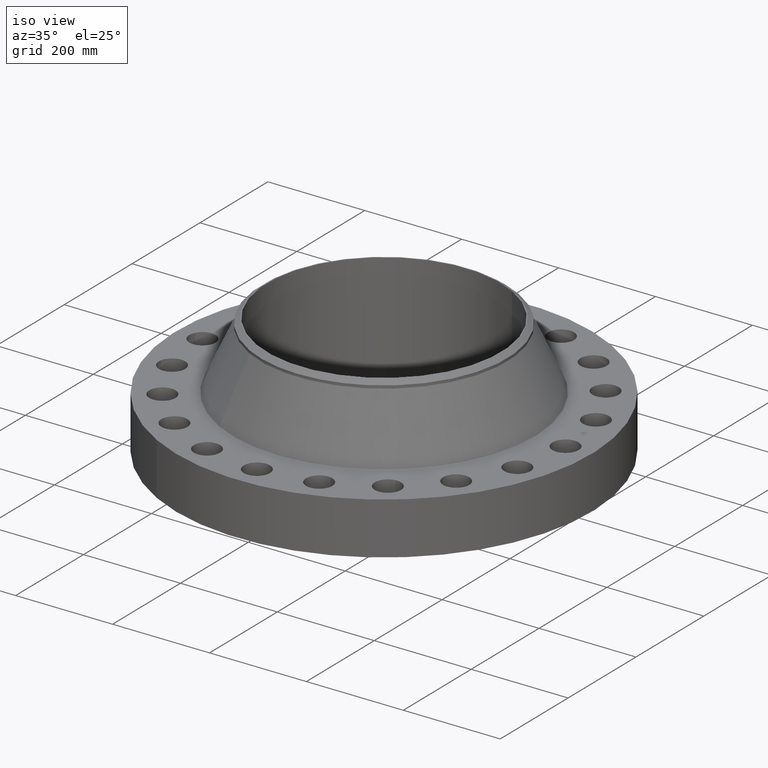
[diagram: clean part render]
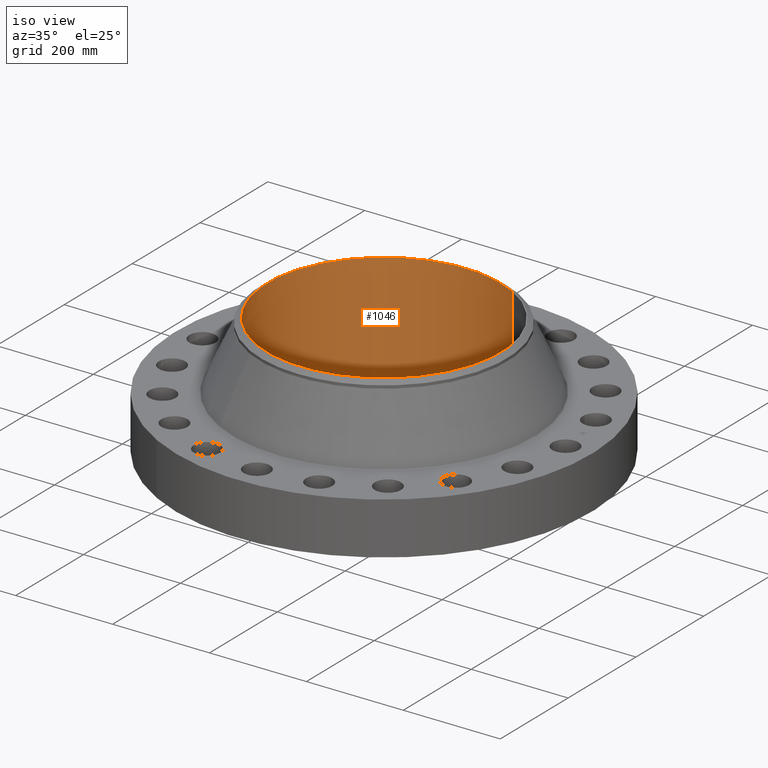
[diagram: same view with one face highlighted and labeled with its STEP entity id]
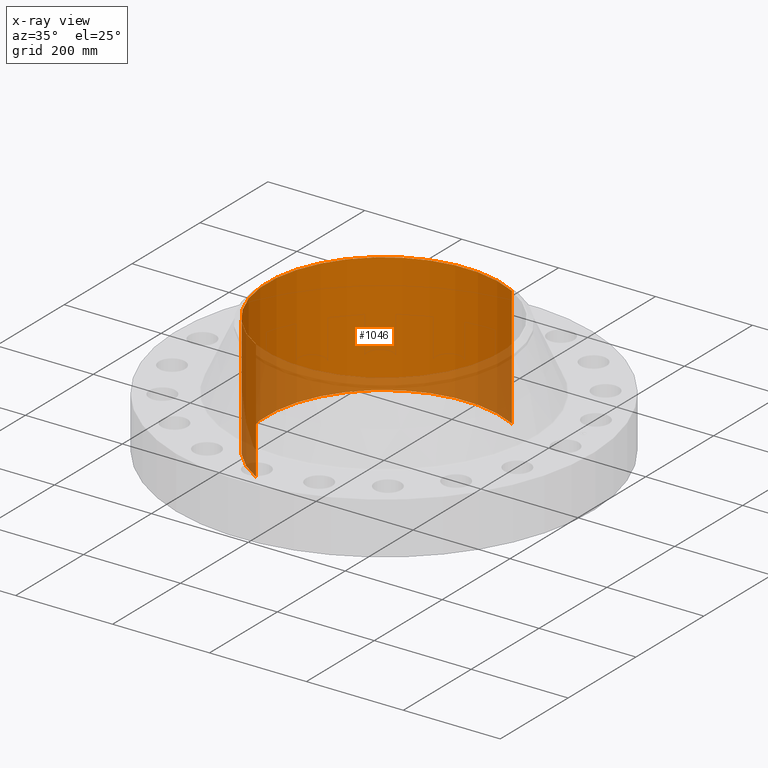
[diagram: x-ray of the same camera — body ghosted, the highlighted face saturated]
A machine part, iso view. The second image highlights one B-rep face of the part: STEP entity #1046.
The next image is the same camera in x-ray: the body ghosted, the highlighted face saturated — about 24% of this face is hidden behind the body in this view.
In plain terms, the highlighted cylindrical surface (partial cylindrical patch) has radius 241.3 mm, axis along (0, 0, -1).
Its self-contained STEP definition (entity closure, byte-faithful):
#174=AXIS2_PLACEMENT_3D('Circle Axis2P3D',#172,#173,$) ;
#1033=AXIS2_PLACEMENT_3D('Cylinder Axis2P3D',#1030,#1031,#1032) ;
#1037=AXIS2_PLACEMENT_3D('Circle Axis2P3D',#1035,#1036,$) ;
#167=CARTESIAN_POINT('Vertex',(4.55454261676,8.33703433799,-2.40006789596E-011)) ;
#169=CARTESIAN_POINT('Vertex',(-4.55454261676,-8.33703433799,-6.60189313541E-014)) ;
#172=CARTESIAN_POINT('Axis2P3D Location',(-3.35689481461E-015,1.0665973791E-011,0.)) ;
#1001=CARTESIAN_POINT('Vertex',(4.55454261673,8.33703433801,9.75000000004)) ;
#1003=CARTESIAN_POINT('Vertex',(-4.55454261673,-8.33703433801,9.75000000004)) ;
#1006=CARTESIAN_POINT('Line Origine',(4.55454261676,8.33703433799,4.87500000002)) ;
#1011=CARTESIAN_POINT('Line Origine',(-4.55454261676,-8.33703433799,4.87500000002)) ;
#1030=CARTESIAN_POINT('Axis2P3D Location',(0.,0.,4.87500000002)) ;
#1035=CARTESIAN_POINT('Axis2P3D Location',(0.,0.,9.75000000004)) ;
#173=DIRECTION('Axis2P3D Direction',(0.,0.,-0.0393700787402)) ;
#1007=DIRECTION('Vector Direction',(0.,0.,-0.0393700787402)) ;
#1012=DIRECTION('Vector Direction',(0.,0.,-0.0393700787402)) ;
#1031=DIRECTION('Axis2P3D Direction',(0.,0.,-0.0393700787402)) ;
#1032=DIRECTION('Axis2P3D XDirection',(-0.0188750212049,-0.0345504945626,0.)) ;
#1036=DIRECTION('Axis2P3D Direction',(0.,0.,-0.0393700787402)) ;
#1008=VECTOR('Line Direction',#1007,0.0393700787402) ;
#1013=VECTOR('Line Direction',#1012,0.0393700787402) ;
#1041=ORIENTED_EDGE('',*,*,#1039,.F.) ;
#1042=ORIENTED_EDGE('',*,*,#1015,.T.) ;
#1043=ORIENTED_EDGE('',*,*,#176,.T.) ;
#1044=ORIENTED_EDGE('',*,*,#1010,.F.) ;
#1046=ADVANCED_FACE('PartBody',(#1045),#1034,.F.) ;
#175=CIRCLE('generated circle',#174,9.50000000004) ;
#1038=CIRCLE('generated circle',#1037,9.50000000004) ;
#1034=CYLINDRICAL_SURFACE('generated cylinder',#1033,9.50000000004) ;
#176=EDGE_CURVE('',#170,#168,#175,.T.) ;
#1010=EDGE_CURVE('',#1002,#168,#1009,.T.) ;
#1015=EDGE_CURVE('',#1004,#170,#1014,.T.) ;
#1039=EDGE_CURVE('',#1004,#1002,#1038,.T.) ;
#1040=EDGE_LOOP('',(#1041,#1042,#1043,#1044)) ;
#1045=FACE_OUTER_BOUND('',#1040,.T.) ;
#1009=LINE('Line',#1006,#1008) ;
#1014=LINE('Line',#1011,#1013) ;
#168=VERTEX_POINT('',#167) ;
#170=VERTEX_POINT('',#169) ;
#1002=VERTEX_POINT('',#1001) ;
#1004=VERTEX_POINT('',#1003) ;